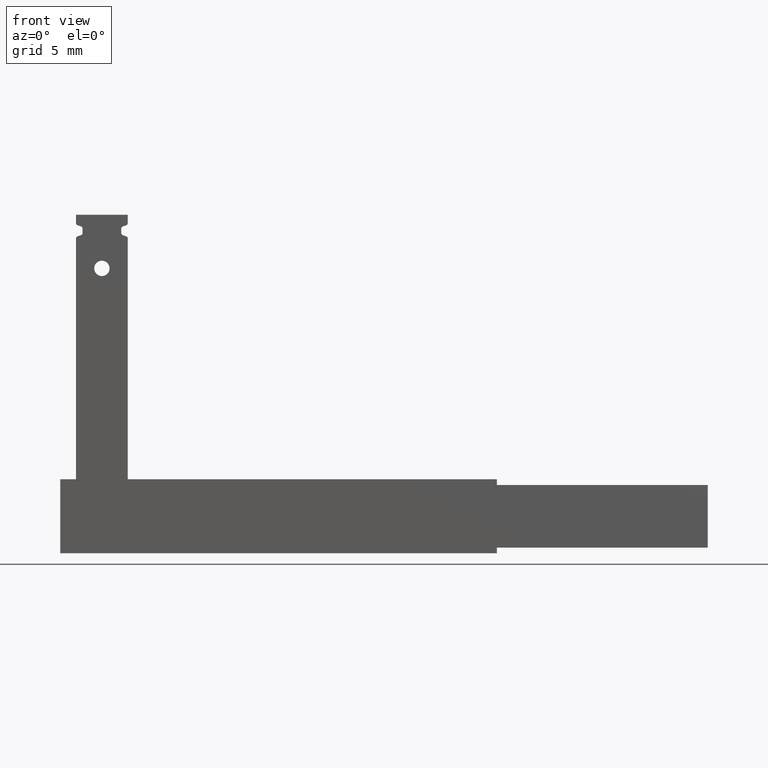
[diagram: clean part render]
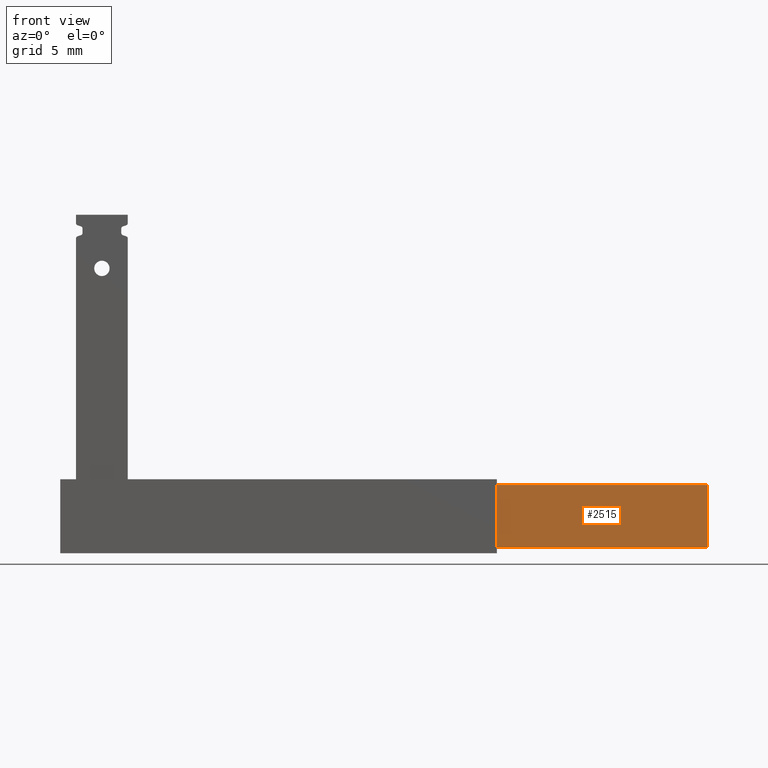
[diagram: same view with one face highlighted and labeled with its STEP entity id]
A machine part, front view. The second image highlights one B-rep face of the part: STEP entity #2515.
In plain terms, the highlighted planar face has unit normal (0, -1, 0).
Its self-contained STEP definition (entity closure, byte-faithful):
#6 = AXIS2_PLACEMENT_3D ( 'NONE', #2226, #114, #1276 ) ;
#114 = DIRECTION ( 'NONE',  ( 0.0000000000000000000, -1.000000000000000000, 0.0000000000000000000 ) ) ;
#312 = CARTESIAN_POINT ( 'NONE',  ( 23.60000000000000900, 0.001000000000000000000, -3.696989483164532700 ) ) ;
#404 = VECTOR ( 'NONE', #2724, 1000.000000000000000 ) ;
#426 = VECTOR ( 'NONE', #1464, 1000.000000000000000 ) ;
#500 = FACE_OUTER_BOUND ( 'NONE', #1668, .T. ) ;
#548 = VECTOR ( 'NONE', #3015, 1000.000000000000000 ) ;
#551 = VERTEX_POINT ( 'NONE', #1434 ) ;
#562 = ORIENTED_EDGE ( 'NONE', *, *, #682, .T. ) ;
#606 = EDGE_CURVE ( 'NONE', #2430, #2403, #1499, .T. ) ;
#682 = EDGE_CURVE ( 'NONE', #1699, #551, #1382, .T. ) ;
#722 = LINE ( 'NONE', #312, #1084 ) ;
#777 = DIRECTION ( 'NONE',  ( 1.000000000000000000, 0.0000000000000000000, 0.0000000000000000000 ) ) ;
#1084 = VECTOR ( 'NONE', #777, 1000.000000000000000 ) ;
#1096 = ORIENTED_EDGE ( 'NONE', *, *, #2313, .T. ) ;
#1147 = CARTESIAN_POINT ( 'NONE',  ( 23.60000000000000900, 0.001000000000000000000, -0.3101830336703397300 ) ) ;
#1276 = DIRECTION ( 'NONE',  ( 0.0000000000000000000, -0.0000000000000000000, -1.000000000000000000 ) ) ;
#1382 = LINE ( 'NONE', #1147, #548 ) ;
#1386 = ORIENTED_EDGE ( 'NONE', *, *, #2244, .T. ) ;
#1434 = CARTESIAN_POINT ( 'NONE',  ( 23.60000000000000900, 0.001000000000000000000, -3.696989483164532700 ) ) ;
#1464 = DIRECTION ( 'NONE',  ( -1.000000000000000000, -0.0000000000000000000, -0.0000000000000000000 ) ) ;
#1484 = CARTESIAN_POINT ( 'NONE',  ( 23.60000000000000900, 0.001000000000000000000, -0.3101830336703397300 ) ) ;
#1499 = LINE ( 'NONE', #2044, #404 ) ;
#1668 = EDGE_LOOP ( 'NONE', ( #562, #1386, #1673, #1096 ) ) ;
#1673 = ORIENTED_EDGE ( 'NONE', *, *, #606, .T. ) ;
#1699 = VERTEX_POINT ( 'NONE', #2157 ) ;
#2044 = CARTESIAN_POINT ( 'NONE',  ( 35.00000000000000000, 0.001000000000000000000, -0.3101830336703397300 ) ) ;
#2157 = CARTESIAN_POINT ( 'NONE',  ( 23.60000000000000900, 0.0009999999999999158900, -0.3101830336703397300 ) ) ;
#2162 = CARTESIAN_POINT ( 'NONE',  ( 35.00000000000000000, 0.001000000000000000000, -3.696989483164532700 ) ) ;
#2226 = CARTESIAN_POINT ( 'NONE',  ( 0.0000000000000000000, 0.001000000000000000000, 0.0000000000000000000 ) ) ;
#2244 = EDGE_CURVE ( 'NONE', #551, #2430, #722, .T. ) ;
#2299 = LINE ( 'NONE', #1484, #426 ) ;
#2313 = EDGE_CURVE ( 'NONE', #2403, #1699, #2299, .T. ) ;
#2403 = VERTEX_POINT ( 'NONE', #2886 ) ;
#2430 = VERTEX_POINT ( 'NONE', #2162 ) ;
#2515 = ADVANCED_FACE ( 'NONE', ( #500 ), #2907, .T. ) ;
#2724 = DIRECTION ( 'NONE',  ( -0.0000000000000000000, -0.0000000000000000000, 1.000000000000000000 ) ) ;
#2886 = CARTESIAN_POINT ( 'NONE',  ( 35.00000000000000000, 0.001000000000000000000, -0.3101830336703397300 ) ) ;
#2907 = PLANE ( 'NONE',  #6 ) ;
#3015 = DIRECTION ( 'NONE',  ( 0.0000000000000000000, 0.0000000000000000000, -1.000000000000000000 ) ) ;